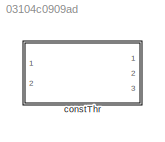
MODEL slx_03104c0909ad
KIND library
CONFIG AbsTol = auto
CONFIG EnableMultiTasking = off
CONFIG FixedStep = auto
CONFIG MaxStep = auto
CONFIG MinStep = auto
CONFIG RelTol = 1e-3
CONFIG SampleTimeConstraint = Unconstrained
CONFIG SolverName = VariableStepAuto
CONFIG StartTime = 0.0
CONFIG StopTime = 10.0
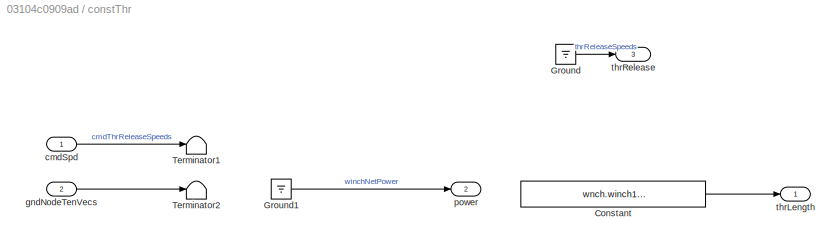
BLOCK [SubSystem] constThr
  Ports = [2, 3]
  RequestExecContextInheritance = off
  VariantControl = VSS_winch_winch000
BLOCK [Constant] constThr/Constant
  Value = wnch.winch1.initLength.Value
  VectorParams1D = off
BLOCK [Ground] constThr/Ground
BLOCK [Ground] constThr/Ground1
BLOCK [Terminator] constThr/Terminator1
BLOCK [Terminator] constThr/Terminator2
BLOCK [Inport] constThr/cmdSpd
BLOCK [Inport] constThr/gndNodeTenVecs
  Port = 2
BLOCK [Outport] constThr/power
  Port = 2
  VectorParamsAs1DForOutWhenUnconnected = off
BLOCK [Outport] constThr/thrLength
  VectorParamsAs1DForOutWhenUnconnected = off
BLOCK [Outport] constThr/thrRelease 
  Port = 3
  VectorParamsAs1DForOutWhenUnconnected = off
LINE constThr/Constant:1 -> constThr/thrLength:1
LINE constThr/Ground1:1 -> constThr/power:1
LINE constThr/Ground:1 -> constThr/thrRelease :1
LINE constThr/cmdSpd:1 -> constThr/Terminator1:1
LINE constThr/gndNodeTenVecs:1 -> constThr/Terminator2:1
